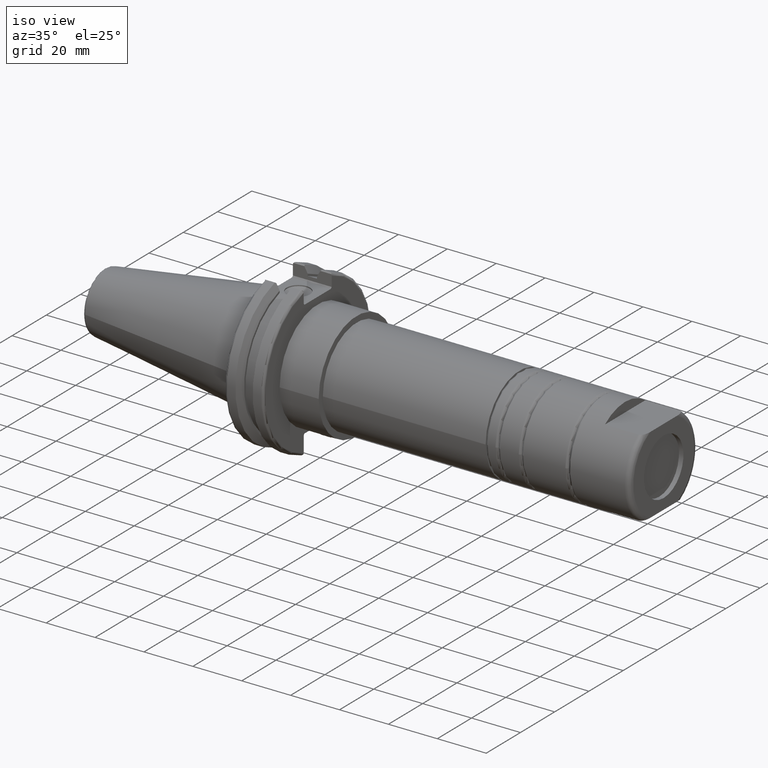
[diagram: clean part render]
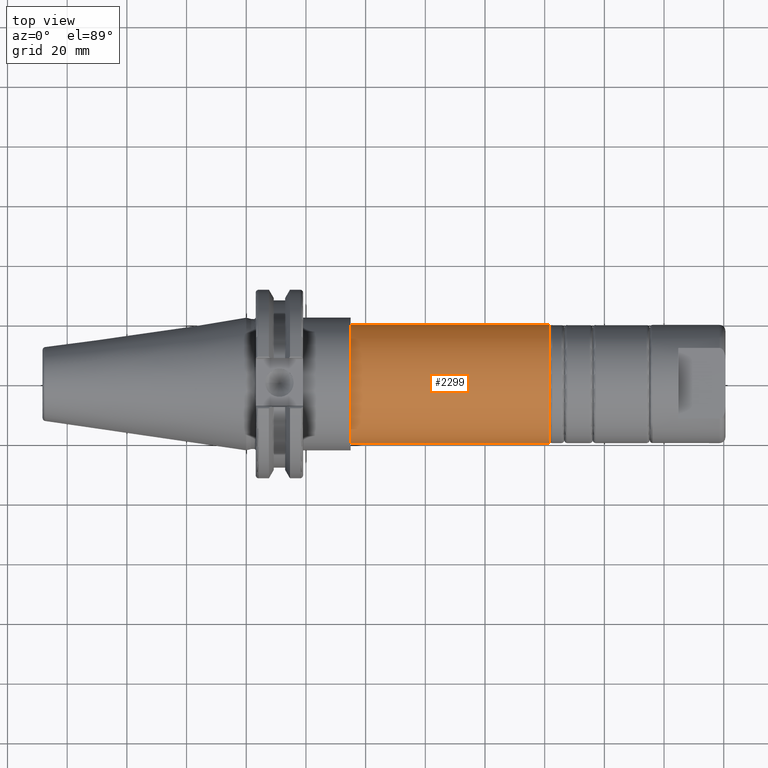
[diagram: tour spotlight — one face highlighted and labeled with its STEP entity id]
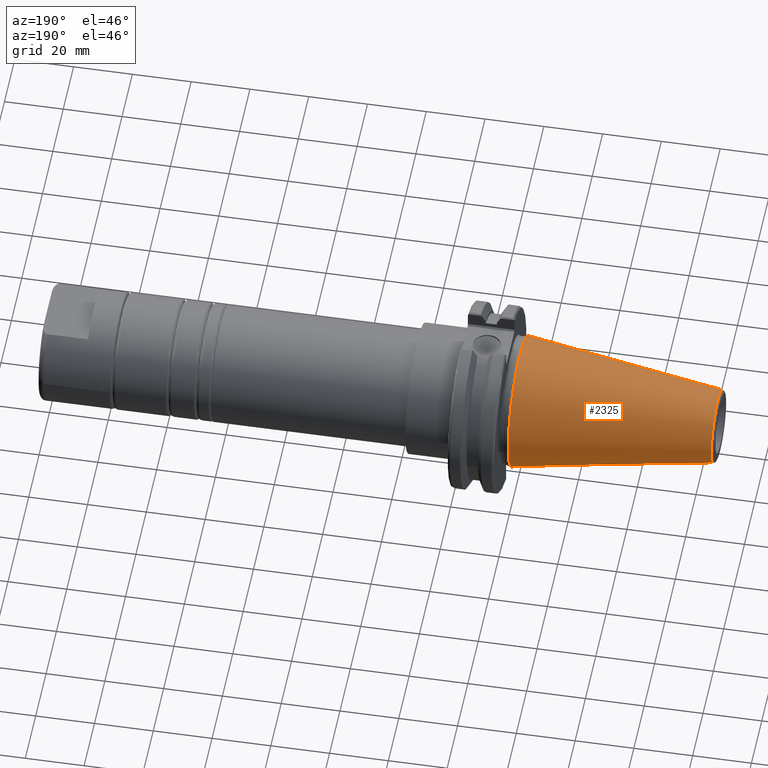
[diagram: tour spotlight — one face highlighted and labeled with its STEP entity id]
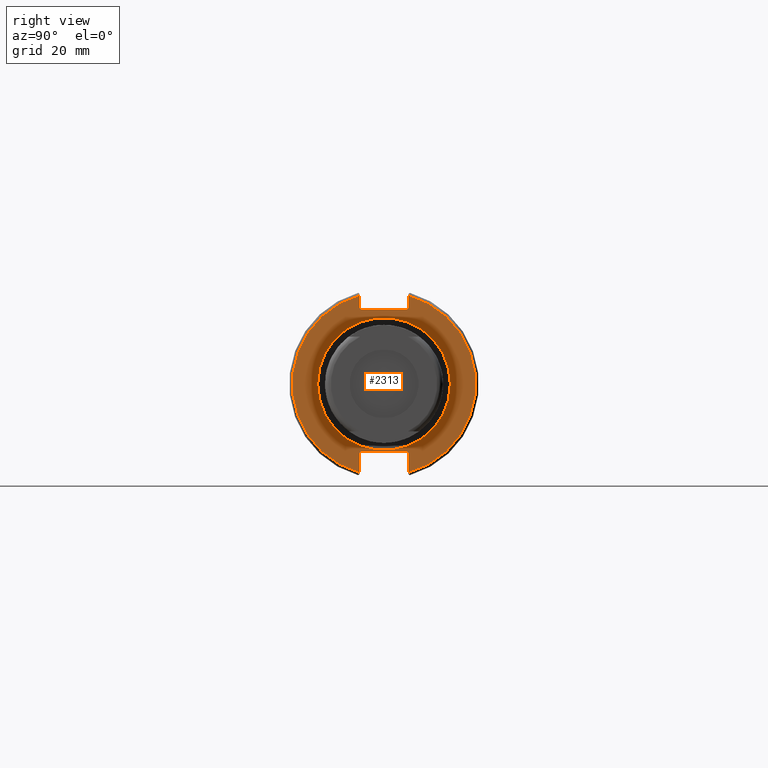
[diagram: tour spotlight — one face highlighted and labeled with its STEP entity id]
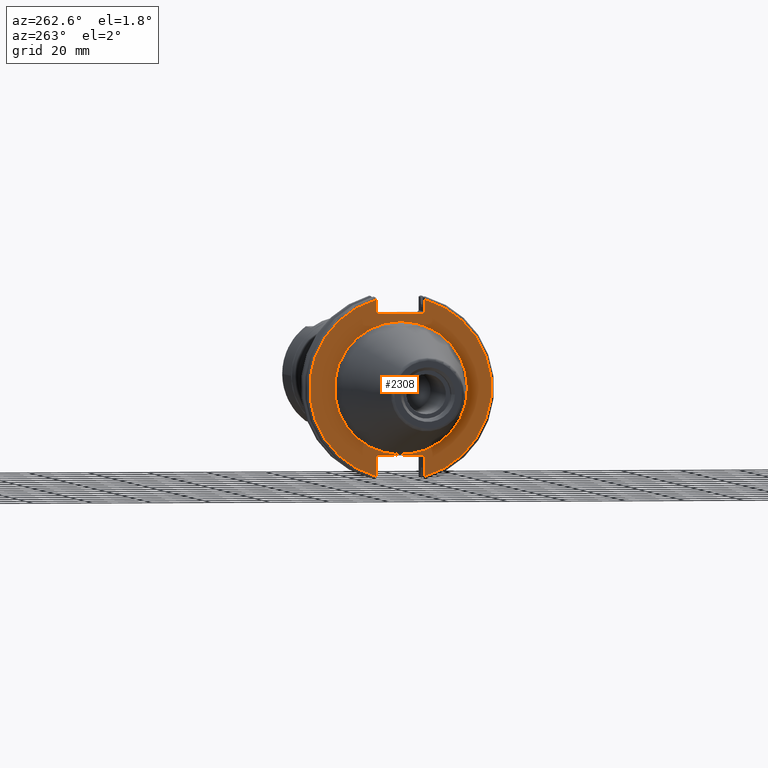
[diagram: tour spotlight — one face highlighted and labeled with its STEP entity id]
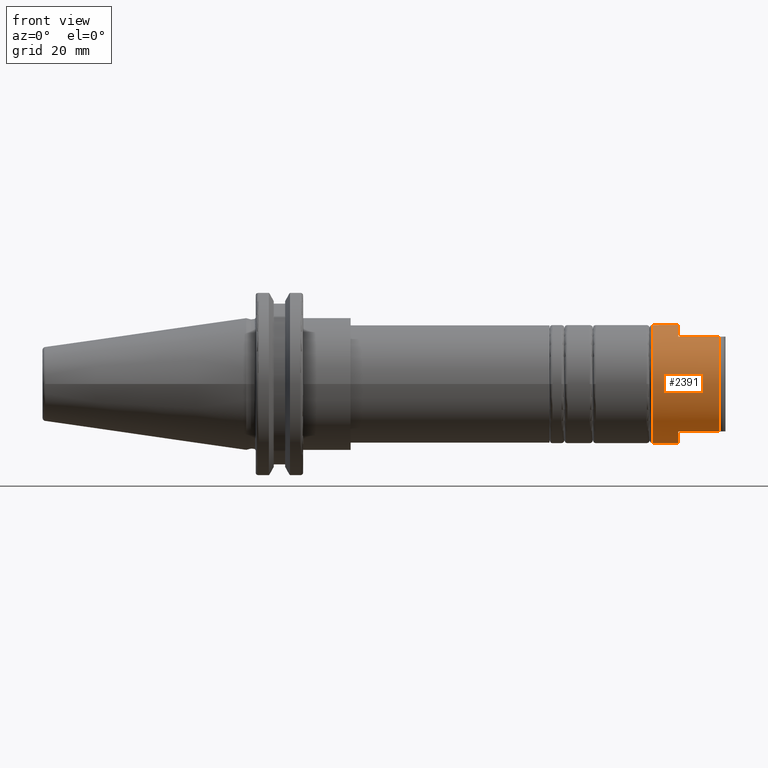
[diagram: tour spotlight — one face highlighted and labeled with its STEP entity id]
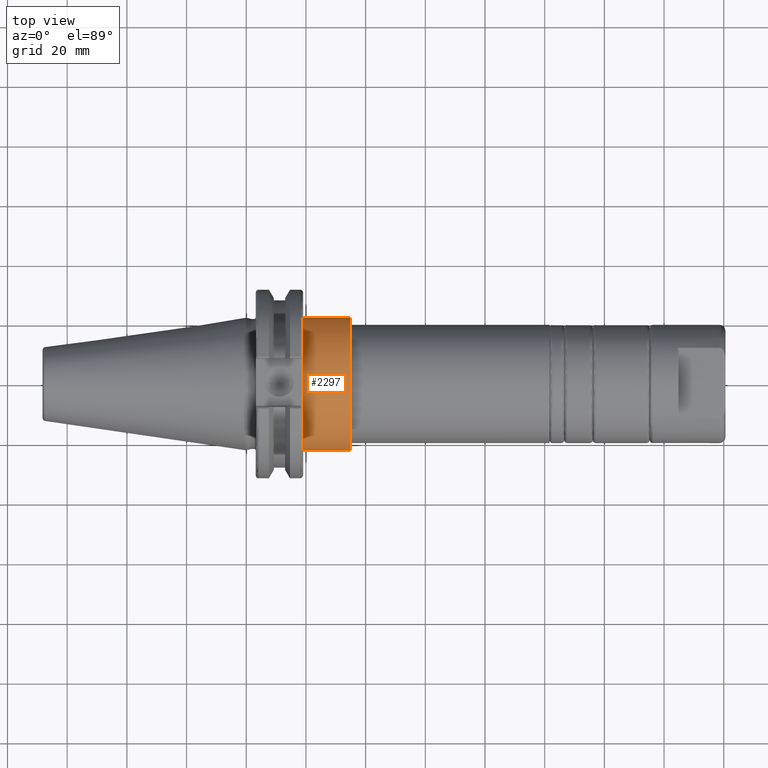
[diagram: tour spotlight — one face highlighted and labeled with its STEP entity id]
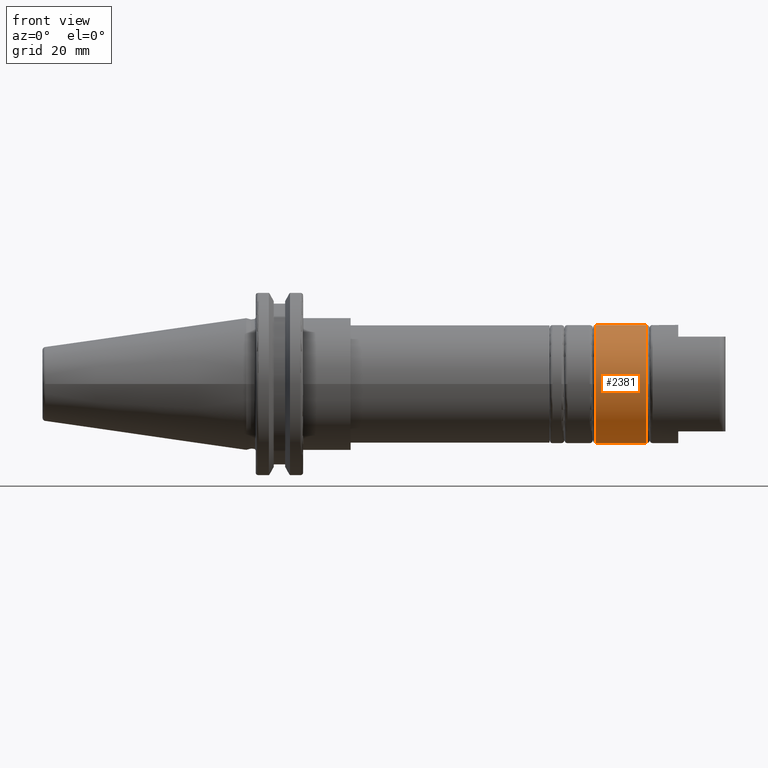
[diagram: tour spotlight — one face highlighted and labeled with its STEP entity id]
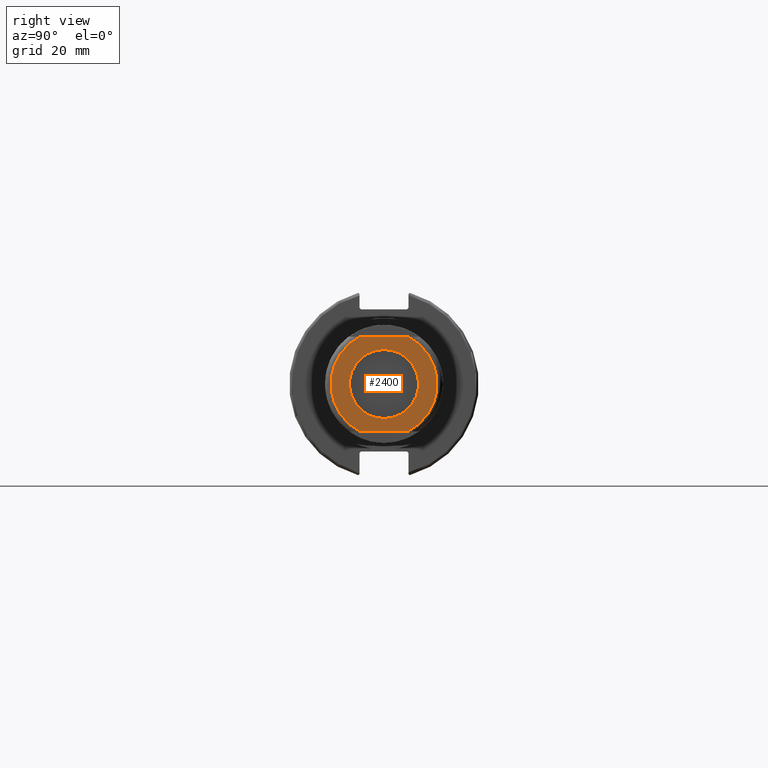
[diagram: tour spotlight — one face highlighted and labeled with its STEP entity id]
A machine part: a face-by-face anatomy tour. The part has 113 B-rep faces; the first image is the clean iso view, then the 8 largest visible faces are spotlighted one at a time (largest first), each with its STEP entity span.

Face 1 — top view, entity #2299. In plain terms, the highlighted cylindrical surface (bore or boss wall) has radius 19.8 mm, axis along (1, 0, 0).
Definition (entity closure, byte-faithful):
#579=CIRCLE('',#2617,19.8);
#580=CIRCLE('',#2619,19.8);
#710=CYLINDRICAL_SURFACE('',#2618,19.8);
#743=FACE_OUTER_BOUND('',#857,.T.);
#857=EDGE_LOOP('',(#1722,#1723,#1724,#1725));
#988=LINE('',#3757,#1120);
#1120=VECTOR('',#2965,19.8);
#1254=VERTEX_POINT('',#3752);
#1255=VERTEX_POINT('',#3755);
#1439=EDGE_CURVE('',#1254,#1254,#579,.T.);
#1440=EDGE_CURVE('',#1255,#1255,#580,.T.);
#1441=EDGE_CURVE('',#1255,#1254,#988,.T.);
#1722=ORIENTED_EDGE('',*,*,#1440,.F.);
#1723=ORIENTED_EDGE('',*,*,#1441,.T.);
#1724=ORIENTED_EDGE('',*,*,#1439,.T.);
#1725=ORIENTED_EDGE('',*,*,#1441,.F.);
#2299=ADVANCED_FACE('',(#743),#710,.T.);
#2617=AXIS2_PLACEMENT_3D('',#3753,#2959,#2960);
#2618=AXIS2_PLACEMENT_3D('',#3754,#2961,#2962);
#2619=AXIS2_PLACEMENT_3D('',#3756,#2963,#2964);
#2959=DIRECTION('center_axis',(1.,0.,0.));
#2960=DIRECTION('ref_axis',(0.,0.,-1.));
#2961=DIRECTION('center_axis',(1.,0.,0.));
#2962=DIRECTION('ref_axis',(0.,1.,0.));
#2963=DIRECTION('center_axis',(1.,0.,0.));
#2964=DIRECTION('ref_axis',(0.,0.,-1.));
#2965=DIRECTION('',(-1.,0.,0.));
#3752=CARTESIAN_POINT('',(35.,-19.8,-2.42480066231176E-15));
#3753=CARTESIAN_POINT('Origin',(35.,0.,0.));
#3754=CARTESIAN_POINT('Origin',(68.3,0.,0.));
#3755=CARTESIAN_POINT('',(101.6,-19.8,-2.42480066231176E-15));
#3756=CARTESIAN_POINT('Origin',(101.6,0.,0.));
#3757=CARTESIAN_POINT('',(68.3,-19.8,-2.42480066231176E-15));

Face 2 — auxiliary view, entity #2325. In plain terms, the highlighted conical surface has half-angle 8.297 deg.
Definition (entity closure, byte-faithful):
#546=CONICAL_SURFACE('',#2670,17.2484375,0.144812498238939);
#601=CIRCLE('',#2664,12.3966635780937);
#602=CIRCLE('',#2665,12.3966635780937);
#606=CIRCLE('',#2671,22.225);
#769=FACE_OUTER_BOUND('',#889,.T.);
#889=EDGE_LOOP('',(#1876,#1877,#1878,#1879,#1880));
#1037=LINE('',#4078,#1169);
#1169=VECTOR('',#3118,17.2484375);
#1329=VERTEX_POINT('',#4065);
#1330=VERTEX_POINT('',#4066);
#1333=VERTEX_POINT('',#4076);
#1536=EDGE_CURVE('',#1329,#1330,#601,.T.);
#1537=EDGE_CURVE('',#1330,#1329,#602,.T.);
#1541=EDGE_CURVE('',#1333,#1333,#606,.T.);
#1542=EDGE_CURVE('',#1333,#1330,#1037,.T.);
#1876=ORIENTED_EDGE('',*,*,#1541,.F.);
#1877=ORIENTED_EDGE('',*,*,#1542,.T.);
#1878=ORIENTED_EDGE('',*,*,#1536,.F.);
#1879=ORIENTED_EDGE('',*,*,#1537,.F.);
#1880=ORIENTED_EDGE('',*,*,#1542,.F.);
#2325=ADVANCED_FACE('',(#769),#546,.T.);
#2664=AXIS2_PLACEMENT_3D('',#4067,#3102,#3103);
#2665=AXIS2_PLACEMENT_3D('',#4068,#3104,#3105);
#2670=AXIS2_PLACEMENT_3D('',#4075,#3114,#3115);
#2671=AXIS2_PLACEMENT_3D('',#4077,#3116,#3117);
#3102=DIRECTION('center_axis',(-1.,0.,0.));
#3103=DIRECTION('ref_axis',(0.,-1.,3.06161699786838E-17));
#3104=DIRECTION('center_axis',(-1.,0.,0.));
#3105=DIRECTION('ref_axis',(0.,-1.,3.06161699786838E-17));
#3114=DIRECTION('center_axis',(1.,0.,0.));
#3115=DIRECTION('ref_axis',(0.,1.,0.));
#3116=DIRECTION('center_axis',(1.,0.,0.));
#3117=DIRECTION('ref_axis',(0.,0.,-1.));
#3118=DIRECTION('',(-0.989532981063282,0.144306893071729,1.76724974695192E-17));
#4065=CARTESIAN_POINT('',(-67.3943068930717,-1.5181534371019E-15,12.3966635780937));
#4066=CARTESIAN_POINT('',(-67.3943068930718,-12.3966635780937,-1.5181534371019E-15));
#4067=CARTESIAN_POINT('Origin',(-67.3943068930717,0.,-1.89769179637738E-15));
#4068=CARTESIAN_POINT('Origin',(-67.3943068930717,0.,-1.89769179637738E-15));
#4075=CARTESIAN_POINT('Origin',(-34.125,0.,0.));
#4076=CARTESIAN_POINT('',(0.,-22.225,-2.72177751110499E-15));
#4077=CARTESIAN_POINT('Origin',(0.,0.,0.));
#4078=CARTESIAN_POINT('',(-34.125,-17.2484375,-2.11232437746682E-15));

Face 3 — right view, entity #2313. In plain terms, the highlighted planar face has unit normal (1, 0, 0).
Definition (entity closure, byte-faithful):
#560=FACE_BOUND('',#876,.T.);
#578=CIRCLE('',#2615,22.225);
#594=CIRCLE('',#2644,30.75);
#596=CIRCLE('',#2649,30.75);
#757=FACE_OUTER_BOUND('',#875,.T.);
#875=EDGE_LOOP('',(#1798,#1799,#1800,#1801,#1802,#1803,#1804,#1805,#1806,
#1807,#1808,#1809));
#876=EDGE_LOOP('',(#1810));
#1007=LINE('',#3867,#1139);
#1013=LINE('',#3893,#1145);
#1014=LINE('',#3895,#1146);
#1015=LINE('',#3897,#1147);
#1016=LINE('',#3899,#1148);
#1017=LINE('',#3901,#1149);
#1018=LINE('',#3905,#1150);
#1019=LINE('',#3907,#1151);
#1020=LINE('',#3909,#1152);
#1021=LINE('',#3910,#1153);
#1139=VECTOR('',#3040,10.);
#1145=VECTOR('',#3048,10.);
#1146=VECTOR('',#3049,10.);
#1147=VECTOR('',#3050,10.);
#1148=VECTOR('',#3051,10.);
#1149=VECTOR('',#3052,10.);
#1150=VECTOR('',#3055,10.);
#1151=VECTOR('',#3056,10.);
#1152=VECTOR('',#3057,10.);
#1153=VECTOR('',#3058,10.);
#1253=VERTEX_POINT('',#3748);
#1280=VERTEX_POINT('',#3822);
#1281=VERTEX_POINT('',#3829);
#1287=VERTEX_POINT('',#3866);
#1294=VERTEX_POINT('',#3892);
#1295=VERTEX_POINT('',#3894);
#1296=VERTEX_POINT('',#3896);
#1297=VERTEX_POINT('',#3898);
#1298=VERTEX_POINT('',#3900);
#1299=VERTEX_POINT('',#3902);
#1300=VERTEX_POINT('',#3904);
#1301=VERTEX_POINT('',#3906);
#1302=VERTEX_POINT('',#3908);
#1438=EDGE_CURVE('',#1253,#1253,#578,.T.);
#1472=EDGE_CURVE('',#1280,#1281,#594,.T.);
#1480=EDGE_CURVE('',#1287,#1281,#1007,.T.);
#1489=EDGE_CURVE('',#1280,#1294,#1013,.T.);
#1490=EDGE_CURVE('',#1295,#1294,#1014,.T.);
#1491=EDGE_CURVE('',#1295,#1296,#1015,.T.);
#1492=EDGE_CURVE('',#1297,#1296,#1016,.T.);
#1493=EDGE_CURVE('',#1297,#1298,#1017,.T.);
#1494=EDGE_CURVE('',#1299,#1298,#596,.T.);
#1495=EDGE_CURVE('',#1299,#1300,#1018,.T.);
#1496=EDGE_CURVE('',#1301,#1300,#1019,.T.);
#1497=EDGE_CURVE('',#1301,#1302,#1020,.T.);
#1498=EDGE_CURVE('',#1287,#1302,#1021,.T.);
#1798=ORIENTED_EDGE('',*,*,#1472,.F.);
#1799=ORIENTED_EDGE('',*,*,#1489,.T.);
#1800=ORIENTED_EDGE('',*,*,#1490,.F.);
#1801=ORIENTED_EDGE('',*,*,#1491,.T.);
#1802=ORIENTED_EDGE('',*,*,#1492,.F.);
#1803=ORIENTED_EDGE('',*,*,#1493,.T.);
#1804=ORIENTED_EDGE('',*,*,#1494,.F.);
#1805=ORIENTED_EDGE('',*,*,#1495,.T.);
#1806=ORIENTED_EDGE('',*,*,#1496,.F.);
#1807=ORIENTED_EDGE('',*,*,#1497,.T.);
#1808=ORIENTED_EDGE('',*,*,#1498,.F.);
#1809=ORIENTED_EDGE('',*,*,#1480,.T.);
#1810=ORIENTED_EDGE('',*,*,#1438,.T.);
#2241=PLANE('',#2648);
#2313=ADVANCED_FACE('',(#757,#560),#2241,.T.);
#2615=AXIS2_PLACEMENT_3D('',#3750,#2955,#2956);
#2644=AXIS2_PLACEMENT_3D('',#3830,#3030,#3031);
#2648=AXIS2_PLACEMENT_3D('',#3891,#3046,#3047);
#2649=AXIS2_PLACEMENT_3D('',#3903,#3053,#3054);
#2955=DIRECTION('center_axis',(-1.,0.,0.));
#2956=DIRECTION('ref_axis',(0.,1.,0.));
#3030=DIRECTION('center_axis',(-1.,0.,0.));
#3031=DIRECTION('ref_axis',(0.,1.,-6.12323399573677E-17));
#3040=DIRECTION('',(0.,0.,-1.));
#3046=DIRECTION('center_axis',(1.,0.,0.));
#3047=DIRECTION('ref_axis',(0.,0.,-1.));
#3048=DIRECTION('',(0.,0.,-1.));
#3049=DIRECTION('',(0.,0.707106781186549,0.707106781186546));
#3050=DIRECTION('',(0.,-1.,0.));
#3051=DIRECTION('',(0.,0.70710678118655,-0.707106781186545));
#3052=DIRECTION('',(0.,0.,1.));
#3053=DIRECTION('center_axis',(-1.,0.,0.));
#3054=DIRECTION('ref_axis',(0.,-1.,1.60812264967664E-16));
#3055=DIRECTION('',(0.,0.,1.));
#3056=DIRECTION('',(0.,-0.707106781186549,-0.707106781186546));
#3057=DIRECTION('',(0.,1.,0.));
#3058=DIRECTION('',(0.,-0.707106781186549,0.707106781186546));
#3748=CARTESIAN_POINT('',(19.05,-22.225,-2.72177751110499E-15));
#3750=CARTESIAN_POINT('Origin',(19.05,0.,0.));
#3822=CARTESIAN_POINT('',(19.05,8.19,29.6392712461019));
#3829=CARTESIAN_POINT('',(19.05,8.19,-29.6392712461019));
#3830=CARTESIAN_POINT('Origin',(19.05,0.,0.));
#3866=CARTESIAN_POINT('',(19.05,8.19,-23.1));
#3867=CARTESIAN_POINT('',(19.05,8.19,-11.3));
#3891=CARTESIAN_POINT('Origin',(19.05,0.,0.));
#3892=CARTESIAN_POINT('',(19.05,8.19,25.5));
#3893=CARTESIAN_POINT('',(19.05,8.19,12.5));
#3894=CARTESIAN_POINT('',(19.05,7.69,25.));
#3895=CARTESIAN_POINT('',(19.05,-0.35750000000001,16.9525));
#3896=CARTESIAN_POINT('',(19.05,-7.69,25.));
#3897=CARTESIAN_POINT('',(19.05,0.,25.));
#3898=CARTESIAN_POINT('',(19.05,-8.19,25.5));
#3899=CARTESIAN_POINT('',(19.05,0.357500000000014,16.9525));
#3900=CARTESIAN_POINT('',(19.05,-8.19,29.6392712461019));
#3901=CARTESIAN_POINT('',(19.05,-8.19,12.5));
#3902=CARTESIAN_POINT('',(19.05,-8.19,-29.6392712461019));
#3903=CARTESIAN_POINT('Origin',(19.05,0.,0.));
#3904=CARTESIAN_POINT('',(19.05,-8.19,-23.1));
#3905=CARTESIAN_POINT('',(19.05,-8.19,-11.3));
#3906=CARTESIAN_POINT('',(19.05,-7.69,-22.6));
#3907=CARTESIAN_POINT('',(19.05,-0.242499999999991,-15.1525));
#3908=CARTESIAN_POINT('',(19.05,7.69,-22.6));
#3909=CARTESIAN_POINT('',(19.05,-2.77555756156289E-16,-22.6));
#3910=CARTESIAN_POINT('',(19.05,0.242499999999989,-15.1525));

Face 4 — auxiliary view, entity #2308. In plain terms, the highlighted planar face has unit normal (-1, 0, 0).
Definition (entity closure, byte-faithful):
#559=FACE_BOUND('',#870,.T.);
#589=CIRCLE('',#2636,22.3);
#591=CIRCLE('',#2639,30.75);
#592=CIRCLE('',#2640,30.75);
#752=FACE_OUTER_BOUND('',#869,.T.);
#869=EDGE_LOOP('',(#1758,#1759,#1760,#1761,#1762,#1763,#1764,#1765,#1766,
#1767,#1768,#1769));
#870=EDGE_LOOP('',(#1770));
#994=LINE('',#3796,#1126);
#995=LINE('',#3798,#1127);
#996=LINE('',#3800,#1128);
#997=LINE('',#3802,#1129);
#998=LINE('',#3804,#1130);
#999=LINE('',#3808,#1131);
#1000=LINE('',#3810,#1132);
#1001=LINE('',#3812,#1133);
#1002=LINE('',#3814,#1134);
#1003=LINE('',#3815,#1135);
#1126=VECTOR('',#3011,10.);
#1127=VECTOR('',#3012,10.);
#1128=VECTOR('',#3013,10.);
#1129=VECTOR('',#3014,10.);
#1130=VECTOR('',#3015,10.);
#1131=VECTOR('',#3018,10.);
#1132=VECTOR('',#3019,10.);
#1133=VECTOR('',#3020,10.);
#1134=VECTOR('',#3021,10.);
#1135=VECTOR('',#3022,10.);
#1265=VERTEX_POINT('',#3787);
#1266=VERTEX_POINT('',#3792);
#1267=VERTEX_POINT('',#3793);
#1268=VERTEX_POINT('',#3795);
#1269=VERTEX_POINT('',#3797);
#1270=VERTEX_POINT('',#3799);
#1271=VERTEX_POINT('',#3801);
#1272=VERTEX_POINT('',#3803);
#1273=VERTEX_POINT('',#3805);
#1274=VERTEX_POINT('',#3807);
#1275=VERTEX_POINT('',#3809);
#1276=VERTEX_POINT('',#3811);
#1277=VERTEX_POINT('',#3813);
#1455=EDGE_CURVE('',#1265,#1265,#589,.T.);
#1457=EDGE_CURVE('',#1266,#1267,#591,.T.);
#1458=EDGE_CURVE('',#1266,#1268,#994,.T.);
#1459=EDGE_CURVE('',#1269,#1268,#995,.T.);
#1460=EDGE_CURVE('',#1269,#1270,#996,.T.);
#1461=EDGE_CURVE('',#1271,#1270,#997,.T.);
#1462=EDGE_CURVE('',#1271,#1272,#998,.T.);
#1463=EDGE_CURVE('',#1273,#1272,#592,.T.);
#1464=EDGE_CURVE('',#1273,#1274,#999,.T.);
#1465=EDGE_CURVE('',#1275,#1274,#1000,.T.);
#1466=EDGE_CURVE('',#1275,#1276,#1001,.T.);
#1467=EDGE_CURVE('',#1277,#1276,#1002,.T.);
#1468=EDGE_CURVE('',#1277,#1267,#1003,.T.);
#1758=ORIENTED_EDGE('',*,*,#1457,.F.);
#1759=ORIENTED_EDGE('',*,*,#1458,.T.);
#1760=ORIENTED_EDGE('',*,*,#1459,.F.);
#1761=ORIENTED_EDGE('',*,*,#1460,.T.);
#1762=ORIENTED_EDGE('',*,*,#1461,.F.);
#1763=ORIENTED_EDGE('',*,*,#1462,.T.);
#1764=ORIENTED_EDGE('',*,*,#1463,.F.);
#1765=ORIENTED_EDGE('',*,*,#1464,.T.);
#1766=ORIENTED_EDGE('',*,*,#1465,.F.);
#1767=ORIENTED_EDGE('',*,*,#1466,.T.);
#1768=ORIENTED_EDGE('',*,*,#1467,.F.);
#1769=ORIENTED_EDGE('',*,*,#1468,.T.);
#1770=ORIENTED_EDGE('',*,*,#1455,.F.);
#2238=PLANE('',#2638);
#2308=ADVANCED_FACE('',(#752,#559),#2238,.T.);
#2636=AXIS2_PLACEMENT_3D('',#3789,#3003,#3004);
#2638=AXIS2_PLACEMENT_3D('',#3791,#3007,#3008);
#2639=AXIS2_PLACEMENT_3D('',#3794,#3009,#3010);
#2640=AXIS2_PLACEMENT_3D('',#3806,#3016,#3017);
#3003=DIRECTION('center_axis',(-1.,0.,0.));
#3004=DIRECTION('ref_axis',(0.,-1.,1.83697019872103E-16));
#3007=DIRECTION('center_axis',(-1.,0.,0.));
#3008=DIRECTION('ref_axis',(0.,0.,1.));
#3009=DIRECTION('center_axis',(1.,0.,0.));
#3010=DIRECTION('ref_axis',(0.,-1.,1.60812264967664E-16));
#3011=DIRECTION('',(0.,0.,-1.));
#3012=DIRECTION('',(0.,-0.70710678118655,0.707106781186545));
#3013=DIRECTION('',(0.,1.,0.));
#3014=DIRECTION('',(0.,-0.707106781186549,-0.707106781186546));
#3015=DIRECTION('',(0.,0.,1.));
#3016=DIRECTION('center_axis',(1.,0.,0.));
#3017=DIRECTION('ref_axis',(0.,1.,1.60812264967664E-16));
#3018=DIRECTION('',(0.,0.,1.));
#3019=DIRECTION('',(0.,0.707106781186549,-0.707106781186546));
#3020=DIRECTION('',(0.,-1.,0.));
#3021=DIRECTION('',(0.,0.707106781186549,0.707106781186546));
#3022=DIRECTION('',(0.,0.,-1.));
#3787=CARTESIAN_POINT('',(3.175,-2.7309623620986E-15,22.3));
#3789=CARTESIAN_POINT('Origin',(3.175,0.,0.));
#3791=CARTESIAN_POINT('Origin',(3.175,31.75,0.));
#3792=CARTESIAN_POINT('',(3.175,-8.18999999999999,29.6392712461019));
#3793=CARTESIAN_POINT('',(3.175,-8.19,-29.6392712461019));
#3794=CARTESIAN_POINT('Origin',(3.175,0.,0.));
#3795=CARTESIAN_POINT('',(3.175,-8.18999999999999,25.5));
#3796=CARTESIAN_POINT('',(3.175,-8.18999999999999,12.5));
#3797=CARTESIAN_POINT('',(3.175,-7.68999999999999,25.));
#3798=CARTESIAN_POINT('',(3.175,8.29500000000007,9.01500000000004));
#3799=CARTESIAN_POINT('',(3.175,7.69,25.));
#3800=CARTESIAN_POINT('',(3.175,15.875,25.));
#3801=CARTESIAN_POINT('',(3.175,8.19,25.5));
#3802=CARTESIAN_POINT('',(3.175,7.58000000000002,24.89));
#3803=CARTESIAN_POINT('',(3.175,8.19,29.6392712461019));
#3804=CARTESIAN_POINT('',(3.175,8.19,12.5));
#3805=CARTESIAN_POINT('',(3.175,8.18999999999999,-29.6392712461019));
#3806=CARTESIAN_POINT('Origin',(3.175,0.,0.));
#3807=CARTESIAN_POINT('',(3.175,8.18999999999999,-23.1));
#3808=CARTESIAN_POINT('',(3.175,8.18999999999999,-11.3));
#3809=CARTESIAN_POINT('',(3.175,7.69,-22.6));
#3810=CARTESIAN_POINT('',(3.175,8.18000000000002,-23.09));
#3811=CARTESIAN_POINT('',(3.175,-7.69,-22.6));
#3812=CARTESIAN_POINT('',(3.175,15.875,-22.6));
#3813=CARTESIAN_POINT('',(3.175,-8.19,-23.1));
#3814=CARTESIAN_POINT('',(3.175,7.69500000000004,-7.21500000000002));
#3815=CARTESIAN_POINT('',(3.175,-8.19,-11.3));

Face 5 — front view, entity #2391. In plain terms, the highlighted cylindrical surface (bore or boss wall) has radius 19.8 mm, axis along (1, 0, 0).
Definition (entity closure, byte-faithful):
#666=CIRCLE('',#2841,19.8);
#667=CIRCLE('',#2843,19.8);
#668=CIRCLE('',#2844,19.8);
#669=CIRCLE('',#2845,19.8);
#670=CIRCLE('',#2846,19.8);
#671=CIRCLE('',#2847,19.8);
#672=CIRCLE('',#2848,19.8);
#731=CYLINDRICAL_SURFACE('',#2842,19.8);
#835=FACE_OUTER_BOUND('',#963,.T.);
#963=EDGE_LOOP('',(#2173,#2174,#2175,#2176,#2177,#2178,#2179,#2180,#2181,
#2182,#2183,#2184,#2185));
#1099=LINE('',#4624,#1231);
#1101=LINE('',#4627,#1233);
#1102=LINE('',#4634,#1234);
#1103=LINE('',#4641,#1235);
#1104=LINE('',#4645,#1236);
#1231=VECTOR('',#3516,10.);
#1233=VECTOR('',#3518,10.);
#1234=VECTOR('',#3527,19.8);
#1235=VECTOR('',#3534,10.);
#1236=VECTOR('',#3537,10.);
#1400=VERTEX_POINT('',#4599);
#1402=VERTEX_POINT('',#4612);
#1403=VERTEX_POINT('',#4623);
#1404=VERTEX_POINT('',#4625);
#1405=VERTEX_POINT('',#4631);
#1406=VERTEX_POINT('',#4633);
#1407=VERTEX_POINT('',#4635);
#1408=VERTEX_POINT('',#4638);
#1409=VERTEX_POINT('',#4640);
#1410=VERTEX_POINT('',#4642);
#1411=VERTEX_POINT('',#4644);
#1661=EDGE_CURVE('',#1403,#1402,#1099,.T.);
#1663=EDGE_CURVE('',#1400,#1404,#1101,.T.);
#1664=EDGE_CURVE('',#1404,#1403,#666,.T.);
#1665=EDGE_CURVE('',#1405,#1402,#667,.T.);
#1666=EDGE_CURVE('',#1405,#1406,#1102,.T.);
#1667=EDGE_CURVE('',#1407,#1406,#668,.T.);
#1668=EDGE_CURVE('',#1406,#1407,#669,.T.);
#1669=EDGE_CURVE('',#1408,#1405,#670,.T.);
#1670=EDGE_CURVE('',#1408,#1409,#1103,.T.);
#1671=EDGE_CURVE('',#1409,#1410,#671,.T.);
#1672=EDGE_CURVE('',#1410,#1411,#1104,.T.);
#1673=EDGE_CURVE('',#1400,#1411,#672,.T.);
#2173=ORIENTED_EDGE('',*,*,#1663,.T.);
#2174=ORIENTED_EDGE('',*,*,#1664,.T.);
#2175=ORIENTED_EDGE('',*,*,#1661,.T.);
#2176=ORIENTED_EDGE('',*,*,#1665,.F.);
#2177=ORIENTED_EDGE('',*,*,#1666,.T.);
#2178=ORIENTED_EDGE('',*,*,#1667,.F.);
#2179=ORIENTED_EDGE('',*,*,#1668,.F.);
#2180=ORIENTED_EDGE('',*,*,#1666,.F.);
#2181=ORIENTED_EDGE('',*,*,#1669,.F.);
#2182=ORIENTED_EDGE('',*,*,#1670,.T.);
#2183=ORIENTED_EDGE('',*,*,#1671,.T.);
#2184=ORIENTED_EDGE('',*,*,#1672,.T.);
#2185=ORIENTED_EDGE('',*,*,#1673,.F.);
#2391=ADVANCED_FACE('',(#835),#731,.T.);
#2841=AXIS2_PLACEMENT_3D('',#4629,#3521,#3522);
#2842=AXIS2_PLACEMENT_3D('',#4630,#3523,#3524);
#2843=AXIS2_PLACEMENT_3D('',#4632,#3525,#3526);
#2844=AXIS2_PLACEMENT_3D('',#4636,#3528,#3529);
#2845=AXIS2_PLACEMENT_3D('',#4637,#3530,#3531);
#2846=AXIS2_PLACEMENT_3D('',#4639,#3532,#3533);
#2847=AXIS2_PLACEMENT_3D('',#4643,#3535,#3536);
#2848=AXIS2_PLACEMENT_3D('',#4646,#3538,#3539);
#3516=DIRECTION('',(1.,0.,0.));
#3518=DIRECTION('',(-1.,0.,0.));
#3521=DIRECTION('center_axis',(-1.,0.,0.));
#3522=DIRECTION('ref_axis',(0.,1.,0.));
#3523=DIRECTION('center_axis',(1.,0.,0.));
#3524=DIRECTION('ref_axis',(0.,1.,0.));
#3525=DIRECTION('center_axis',(1.,0.,0.));
#3526=DIRECTION('ref_axis',(0.,-1.,1.83697019872103E-16));
#3527=DIRECTION('',(-1.,0.,0.));
#3528=DIRECTION('center_axis',(-1.,0.,0.));
#3529=DIRECTION('ref_axis',(0.,-1.,1.83697019872103E-16));
#3530=DIRECTION('center_axis',(-1.,0.,0.));
#3531=DIRECTION('ref_axis',(0.,-1.,1.83697019872103E-16));
#3532=DIRECTION('center_axis',(1.,0.,0.));
#3533=DIRECTION('ref_axis',(0.,-1.,1.83697019872103E-16));
#3534=DIRECTION('',(-1.,0.,0.));
#3535=DIRECTION('center_axis',(-1.,0.,0.));
#3536=DIRECTION('ref_axis',(0.,1.,0.));
#3537=DIRECTION('',(1.,0.,0.));
#3538=DIRECTION('center_axis',(1.,0.,0.));
#3539=DIRECTION('ref_axis',(0.,-1.,1.83697019872103E-16));
#4599=CARTESIAN_POINT('',(23.4,11.8331895531171,-15.875));
#4612=CARTESIAN_POINT('',(23.4,-11.8331895531171,-15.875));
#4623=CARTESIAN_POINT('',(9.60000000000001,-11.8331895531171,-15.875));
#4624=CARTESIAN_POINT('',(12.7,-11.8331895531171,-15.875));
#4625=CARTESIAN_POINT('',(9.60000000000001,11.8331895531171,-15.875));
#4627=CARTESIAN_POINT('',(12.7,11.8331895531171,-15.875));
#4629=CARTESIAN_POINT('Origin',(9.60000000000001,0.,0.));
#4630=CARTESIAN_POINT('Origin',(12.7,0.,0.));
#4631=CARTESIAN_POINT('',(23.4,-19.8,-2.42480066231176E-15));
#4632=CARTESIAN_POINT('Origin',(23.4,0.,0.));
#4633=CARTESIAN_POINT('',(0.999999999999999,-19.8,-2.42480066231176E-15));
#4634=CARTESIAN_POINT('',(12.7,-19.8,-2.42480066231176E-15));
#4635=CARTESIAN_POINT('',(0.999999999999999,-2.42480066231176E-15,19.8));
#4636=CARTESIAN_POINT('Origin',(0.999999999999999,0.,0.));
#4637=CARTESIAN_POINT('Origin',(0.999999999999999,0.,0.));
#4638=CARTESIAN_POINT('',(23.4,-11.8331895531171,15.875));
#4639=CARTESIAN_POINT('Origin',(23.4,0.,0.));
#4640=CARTESIAN_POINT('',(9.60000000000001,-11.8331895531171,15.875));
#4641=CARTESIAN_POINT('',(12.7,-11.8331895531171,15.875));
#4642=CARTESIAN_POINT('',(9.60000000000001,11.8331895531171,15.875));
#4643=CARTESIAN_POINT('Origin',(9.60000000000001,0.,0.));
#4644=CARTESIAN_POINT('',(23.4,11.8331895531171,15.875));
#4645=CARTESIAN_POINT('',(12.7,11.8331895531171,15.875));
#4646=CARTESIAN_POINT('Origin',(23.4,0.,0.));

Face 6 — top view, entity #2297. In plain terms, the highlighted cylindrical surface (bore or boss wall) has radius 22.225 mm, axis along (1, 0, 0).
Definition (entity closure, byte-faithful):
#577=CIRCLE('',#2614,22.225);
#578=CIRCLE('',#2615,22.225);
#709=CYLINDRICAL_SURFACE('',#2613,22.225);
#741=FACE_OUTER_BOUND('',#854,.T.);
#854=EDGE_LOOP('',(#1716,#1717,#1718,#1719));
#987=LINE('',#3749,#1119);
#1119=VECTOR('',#2954,22.225);
#1252=VERTEX_POINT('',#3746);
#1253=VERTEX_POINT('',#3748);
#1436=EDGE_CURVE('',#1252,#1252,#577,.T.);
#1437=EDGE_CURVE('',#1252,#1253,#987,.T.);
#1438=EDGE_CURVE('',#1253,#1253,#578,.T.);
#1716=ORIENTED_EDGE('',*,*,#1436,.F.);
#1717=ORIENTED_EDGE('',*,*,#1437,.T.);
#1718=ORIENTED_EDGE('',*,*,#1438,.F.);
#1719=ORIENTED_EDGE('',*,*,#1437,.F.);
#2297=ADVANCED_FACE('',(#741),#709,.T.);
#2613=AXIS2_PLACEMENT_3D('',#3745,#2950,#2951);
#2614=AXIS2_PLACEMENT_3D('',#3747,#2952,#2953);
#2615=AXIS2_PLACEMENT_3D('',#3750,#2955,#2956);
#2950=DIRECTION('center_axis',(1.,0.,0.));
#2951=DIRECTION('ref_axis',(0.,1.,0.));
#2952=DIRECTION('center_axis',(1.,0.,0.));
#2953=DIRECTION('ref_axis',(0.,0.,-1.));
#2954=DIRECTION('',(-1.,0.,0.));
#2955=DIRECTION('center_axis',(-1.,0.,0.));
#2956=DIRECTION('ref_axis',(0.,1.,0.));
#3745=CARTESIAN_POINT('Origin',(27.025,0.,0.));
#3746=CARTESIAN_POINT('',(35.,-22.225,-2.72177751110499E-15));
#3747=CARTESIAN_POINT('Origin',(35.,0.,0.));
#3748=CARTESIAN_POINT('',(19.05,-22.225,-2.72177751110499E-15));
#3749=CARTESIAN_POINT('',(27.025,-22.225,-2.72177751110499E-15));
#3750=CARTESIAN_POINT('Origin',(19.05,0.,0.));

Face 7 — front view, entity #2381. In plain terms, the highlighted cylindrical surface (bore or boss wall) has radius 19.8 mm, axis along (1, 0, 0).
Definition (entity closure, byte-faithful):
#657=CIRCLE('',#2813,19.8);
#658=CIRCLE('',#2814,19.8);
#659=CIRCLE('',#2816,19.8);
#660=CIRCLE('',#2817,19.8);
#729=CYLINDRICAL_SURFACE('',#2815,19.8);
#825=FACE_OUTER_BOUND('',#951,.T.);
#951=EDGE_LOOP('',(#2128,#2129,#2130,#2131,#2132,#2133));
#1087=LINE('',#4529,#1219);
#1219=VECTOR('',#3456,19.8);
#1386=VERTEX_POINT('',#4522);
#1387=VERTEX_POINT('',#4524);
#1388=VERTEX_POINT('',#4528);
#1389=VERTEX_POINT('',#4530);
#1639=EDGE_CURVE('',#1386,#1387,#657,.T.);
#1640=EDGE_CURVE('',#1387,#1386,#658,.T.);
#1641=EDGE_CURVE('',#1387,#1388,#1087,.T.);
#1642=EDGE_CURVE('',#1389,#1388,#659,.T.);
#1643=EDGE_CURVE('',#1388,#1389,#660,.T.);
#2128=ORIENTED_EDGE('',*,*,#1640,.F.);
#2129=ORIENTED_EDGE('',*,*,#1641,.T.);
#2130=ORIENTED_EDGE('',*,*,#1642,.F.);
#2131=ORIENTED_EDGE('',*,*,#1643,.F.);
#2132=ORIENTED_EDGE('',*,*,#1641,.F.);
#2133=ORIENTED_EDGE('',*,*,#1639,.F.);
#2381=ADVANCED_FACE('',(#825),#729,.T.);
#2813=AXIS2_PLACEMENT_3D('',#4525,#3450,#3451);
#2814=AXIS2_PLACEMENT_3D('',#4526,#3452,#3453);
#2815=AXIS2_PLACEMENT_3D('',#4527,#3454,#3455);
#2816=AXIS2_PLACEMENT_3D('',#4531,#3457,#3458);
#2817=AXIS2_PLACEMENT_3D('',#4532,#3459,#3460);
#3450=DIRECTION('center_axis',(1.,0.,0.));
#3451=DIRECTION('ref_axis',(0.,-1.,1.83697019872103E-16));
#3452=DIRECTION('center_axis',(1.,0.,0.));
#3453=DIRECTION('ref_axis',(0.,-1.,1.83697019872103E-16));
#3454=DIRECTION('center_axis',(1.,0.,0.));
#3455=DIRECTION('ref_axis',(0.,1.,0.));
#3456=DIRECTION('',(-1.,0.,0.));
#3457=DIRECTION('center_axis',(-1.,0.,0.));
#3458=DIRECTION('ref_axis',(0.,-1.,1.83697019872103E-16));
#3459=DIRECTION('center_axis',(-1.,0.,0.));
#3460=DIRECTION('ref_axis',(0.,-1.,1.83697019872103E-16));
#4522=CARTESIAN_POINT('',(8.525,-2.42480066231176E-15,19.8));
#4524=CARTESIAN_POINT('',(8.525,-19.8,-2.42480066231176E-15));
#4525=CARTESIAN_POINT('Origin',(8.525,0.,0.));
#4526=CARTESIAN_POINT('Origin',(8.525,0.,0.));
#4527=CARTESIAN_POINT('Origin',(0.,0.,0.));
#4528=CARTESIAN_POINT('',(-8.525,-19.8,-2.42480066231176E-15));
#4529=CARTESIAN_POINT('',(0.,-19.8,-2.42480066231176E-15));
#4530=CARTESIAN_POINT('',(-8.525,-2.42480066231176E-15,19.8));
#4531=CARTESIAN_POINT('Origin',(-8.525,0.,0.));
#4532=CARTESIAN_POINT('Origin',(-8.525,0.,0.));

Face 8 — right view, entity #2400. In plain terms, the highlighted planar face has unit normal (1, 0, 0).
Definition (entity closure, byte-faithful):
#571=FACE_BOUND('',#974,.T.);
#673=CIRCLE('',#2850,17.8);
#674=CIRCLE('',#2852,17.8);
#681=CIRCLE('',#2866,11.557);
#844=FACE_OUTER_BOUND('',#973,.T.);
#973=EDGE_LOOP('',(#2220,#2221,#2222,#2223));
#974=EDGE_LOOP('',(#2224));
#1098=LINE('',#4611,#1230);
#1105=LINE('',#4674,#1237);
#1230=VECTOR('',#3515,10.);
#1237=VECTOR('',#3550,10.);
#1399=VERTEX_POINT('',#4598);
#1401=VERTEX_POINT('',#4610);
#1412=VERTEX_POINT('',#4648);
#1413=VERTEX_POINT('',#4661);
#1419=VERTEX_POINT('',#4695);
#1659=EDGE_CURVE('',#1401,#1399,#1098,.T.);
#1674=EDGE_CURVE('',#1401,#1412,#673,.T.);
#1677=EDGE_CURVE('',#1413,#1399,#674,.T.);
#1678=EDGE_CURVE('',#1413,#1412,#1105,.T.);
#1688=EDGE_CURVE('',#1419,#1419,#681,.T.);
#2220=ORIENTED_EDGE('',*,*,#1659,.T.);
#2221=ORIENTED_EDGE('',*,*,#1677,.F.);
#2222=ORIENTED_EDGE('',*,*,#1678,.T.);
#2223=ORIENTED_EDGE('',*,*,#1674,.F.);
#2224=ORIENTED_EDGE('',*,*,#1688,.T.);
#2288=PLANE('',#2865);
#2400=ADVANCED_FACE('',(#844,#571),#2288,.T.);
#2850=AXIS2_PLACEMENT_3D('',#4649,#3542,#3543);
#2852=AXIS2_PLACEMENT_3D('',#4672,#3546,#3547);
#2865=AXIS2_PLACEMENT_3D('',#4694,#3576,#3577);
#2866=AXIS2_PLACEMENT_3D('',#4696,#3578,#3579);
#3515=DIRECTION('',(0.,1.,-1.22464679914735E-16));
#3542=DIRECTION('center_axis',(-1.,0.,0.));
#3543=DIRECTION('ref_axis',(0.,-1.,1.83697019872103E-16));
#3546=DIRECTION('center_axis',(-1.,0.,0.));
#3547=DIRECTION('ref_axis',(0.,-1.,1.83697019872103E-16));
#3550=DIRECTION('',(0.,-1.,0.));
#3576=DIRECTION('center_axis',(1.,0.,0.));
#3577=DIRECTION('ref_axis',(0.,0.,-1.));
#3578=DIRECTION('center_axis',(-1.,0.,0.));
#3579=DIRECTION('ref_axis',(0.,0.,-1.));
#4598=CARTESIAN_POINT('',(25.4,8.0513585810098,-15.875));
#4610=CARTESIAN_POINT('',(25.4,-8.05135858100981,-15.875));
#4611=CARTESIAN_POINT('',(25.4,-7.5,-15.875));
#4648=CARTESIAN_POINT('',(25.4,-8.0513585810098,15.875));
#4649=CARTESIAN_POINT('Origin',(25.4,0.,0.));
#4661=CARTESIAN_POINT('',(25.4,8.0513585810098,15.875));
#4672=CARTESIAN_POINT('Origin',(25.4,0.,0.));
#4674=CARTESIAN_POINT('',(25.4,7.5,15.875));
#4694=CARTESIAN_POINT('Origin',(25.4,1.53603428569244E-15,0.));
#4695=CARTESIAN_POINT('',(25.4,-1.4153243057746E-15,11.557));
#4696=CARTESIAN_POINT('Origin',(25.4,0.,0.));